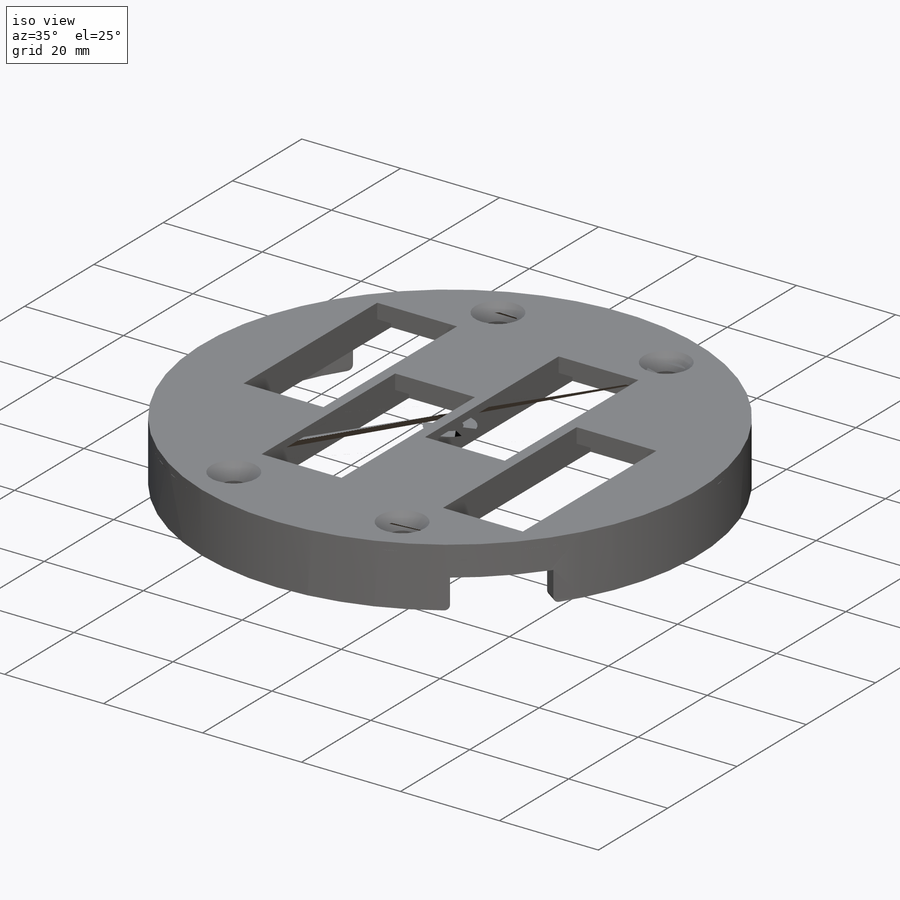
[diagram: iso view]
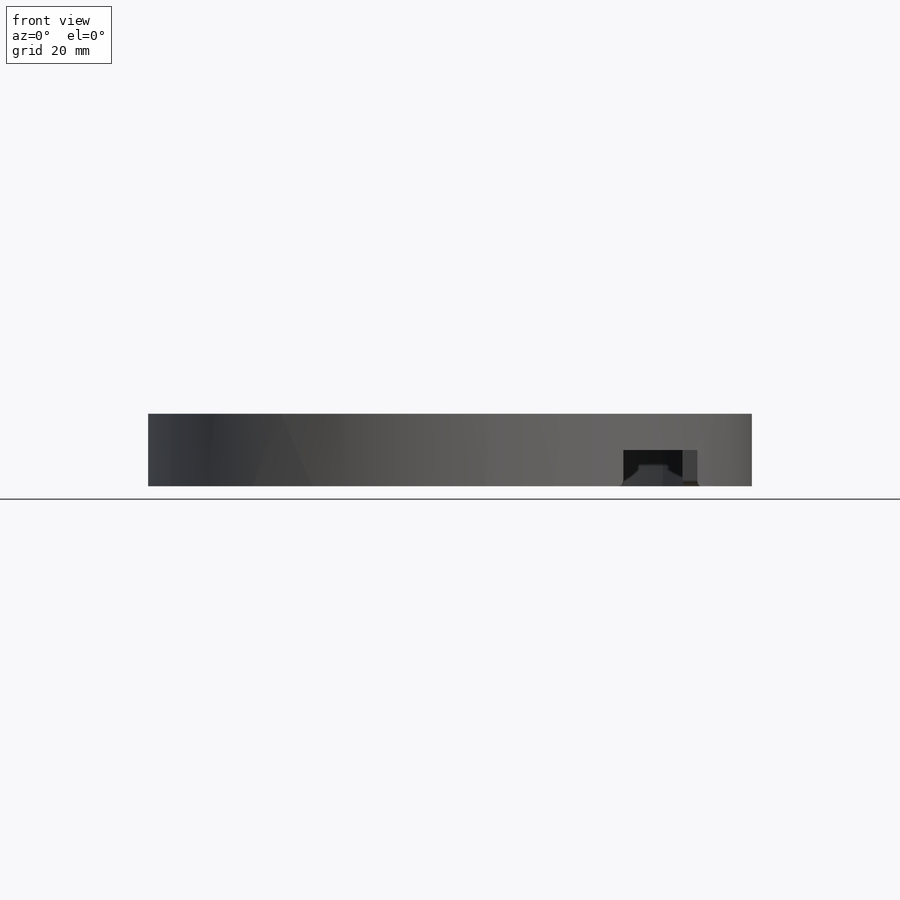
[diagram: front view]
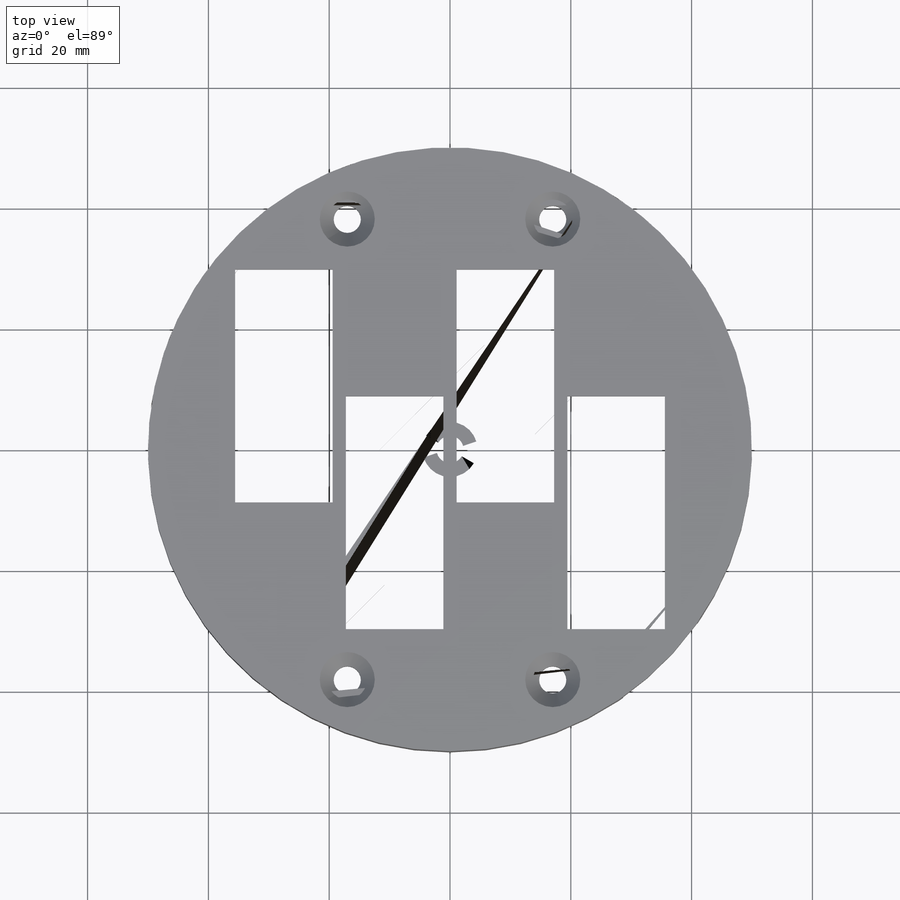
[diagram: top view]
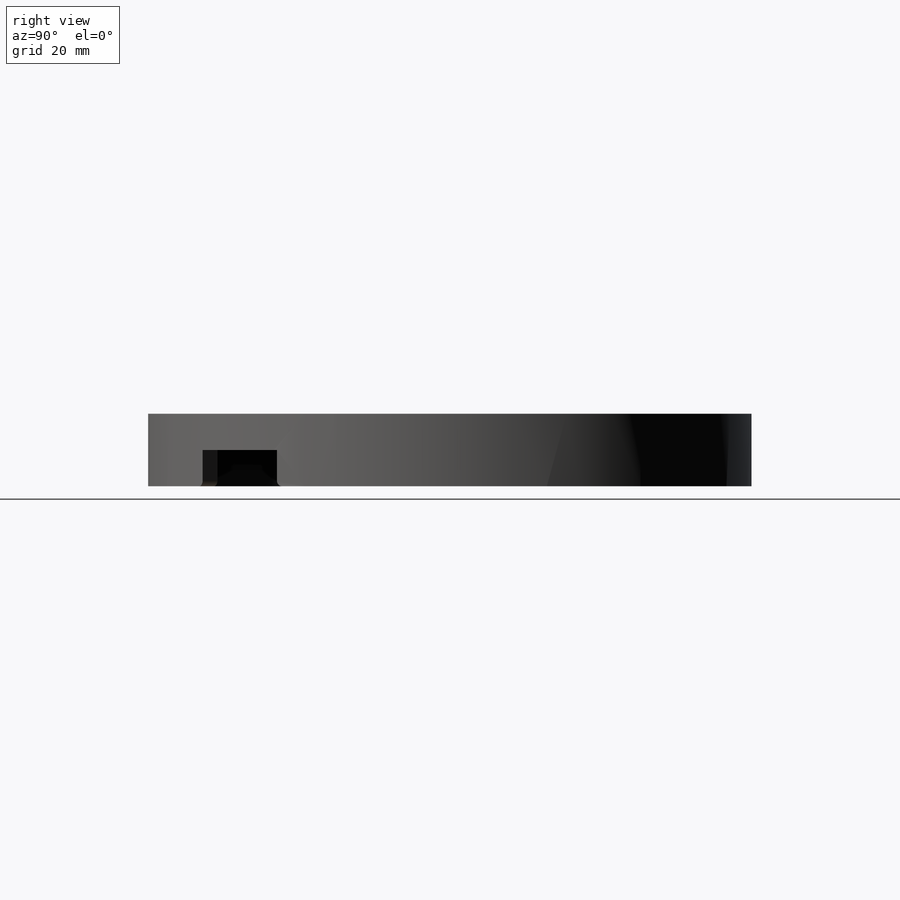
[diagram: right view]
SOLIDWORKS PART (.sldprt)
format: sldprt  version: not decoded by parser v0  size: 639,488 bytes
history: native  units: mm
features: sketch x9, extrude x4, cut_extrude x3, material x1, hole x1, fillet x1 + 2 further entries (+23 scaffold rows collapsed; 6 parser-record rows omitted)
feature tree (50):
  scaffold x23  (default folders/planes/origin — collapsed)
  material  "ABS"
  "a_base_t"
  parser-record x6  (decoder bookkeeping rows leaked as tree rows — omitted from the tree; the rows remain in map.json)
  "params_finger_t"
  sketch  "Sketch2"  dims[c1.D1=1.5mm c1.D2=29.5715mm c1.D3=16.15mm c2.D1=1.5mm c2.D4=~14.78575mm c2.D2=6.0mm]
  cut_extrude  "Finger Base Through Holes"  [1 undecoded]
  sketch  "Sketch3"  dims[D1=3.0mm]
  extrude  "Ring Extrude"  Depth=3mm
  sketch  "Sketch1"  dims[D1=100.0mm]
  extrude  "Outer Ring"  Depth=9mm
  sketch  "Sketch4"  dims[D1=3.0mm D2=~62.737549mm]
  extrude  "Frame Extrude 1"  [1 undecoded]
  sketch  "Sketch5"  dims[D1=3.0mm D2=4.0mm D3=~3.431362mm]
  extrude  "Frame Extrude 2"  [1 undecoded]
  hole  "CSK for #8 Flat Head Socket Cap Screw1"  Diameter=4.4958mm Depth=12mm
  sketch  "Sketch8"
  sketch  "Sketch7"  dims[hole-wizard template sketch: 55 standard entries collapsed; hole parameters kept: c17.Thru Hole Depth=12.0mm c17.Near C'Sink Dia.=9.1186mm c17.D4=~3.666174mm c17.Near C'Sink Angle=82.0deg]
  sketch  "Sketch10"
  cut_extrude  "Allowance Cut 1"  [1 undecoded]
  sketch  "Sketch12"  dims[c1.D1=50.0mm c2.D1=45.0deg c2.D2=50.0mm c3.D2=10.0deg c4.D2=~40.673754mm c5.D2=20.0deg]
  cut_extrude  "Allowance Cut 2"  [1 undecoded]
  fillet  "Contouring"  Radius=1mm
decode coverage: 11 of 18 modeling features carry decoded parameters; 2 rows unclassified (native names shown)
note: ~ marks probable driven/reference dimensions
note: 5 parameter values undecoded
summary: no parameter record found for 5 features
note: suppression state not decoded; provenance and decode notes live in map.json
